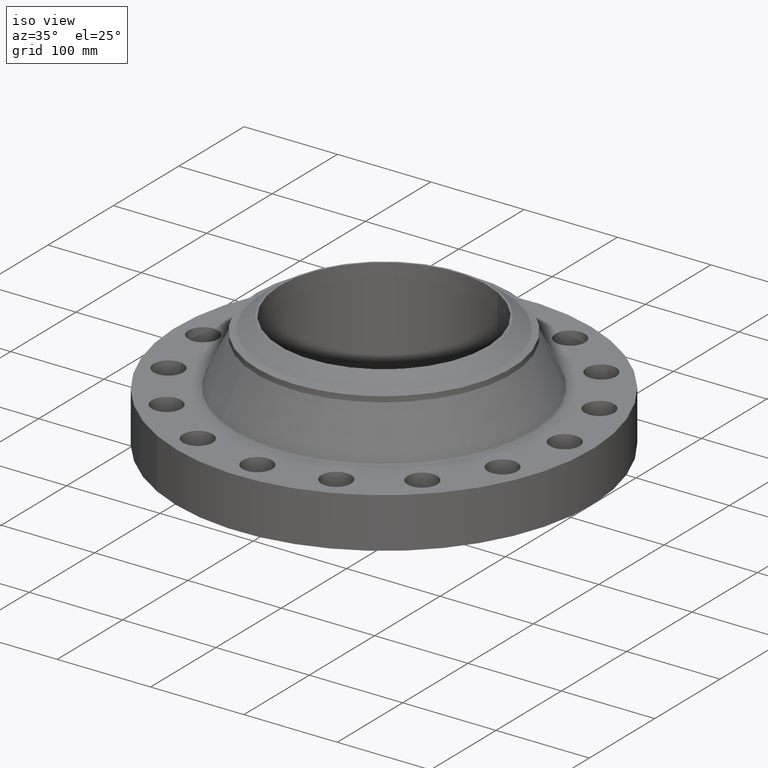
[diagram: clean part render]
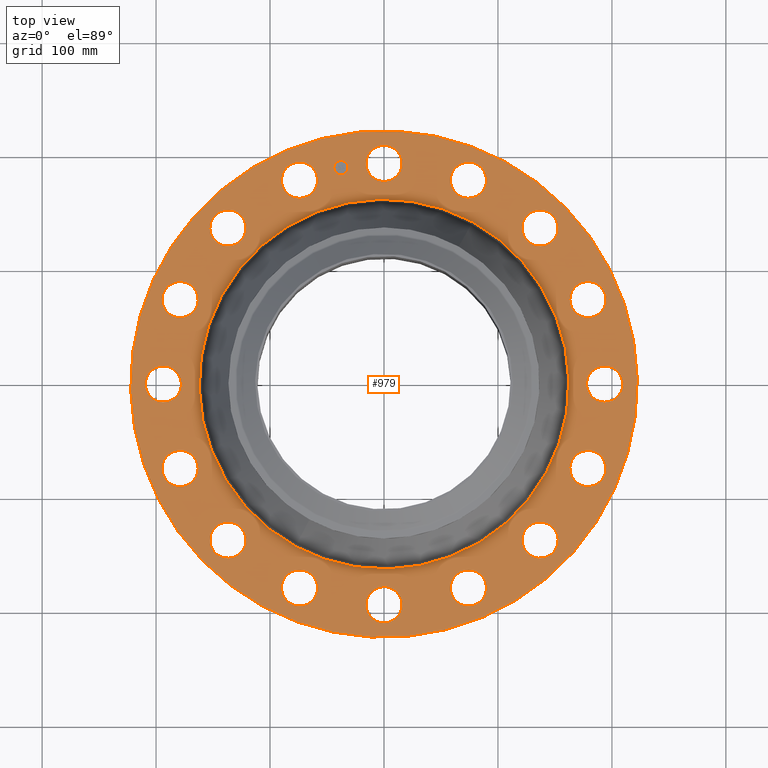
[diagram: tour spotlight — one face highlighted and labeled with its STEP entity id]
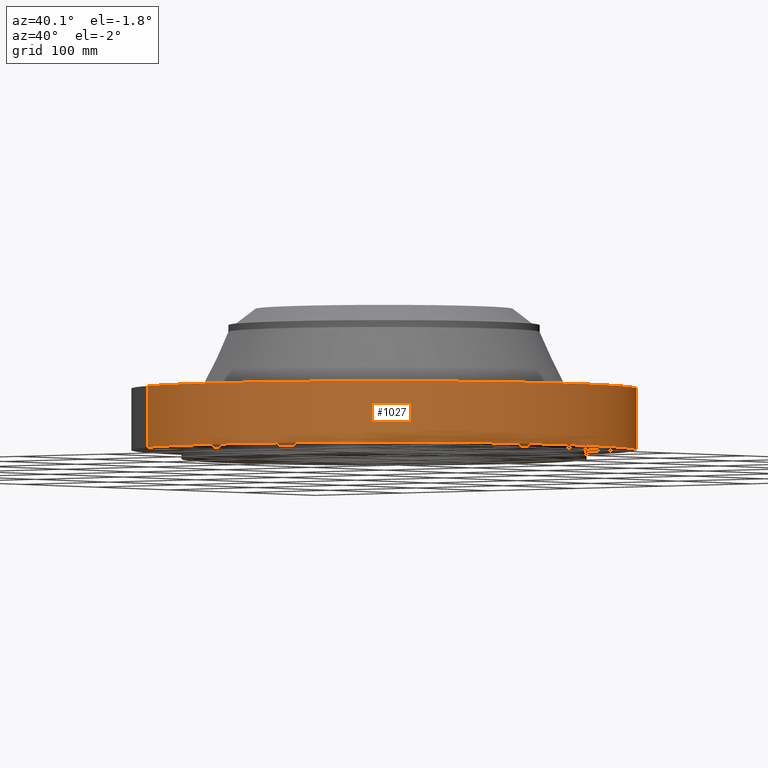
[diagram: tour spotlight — one face highlighted and labeled with its STEP entity id]
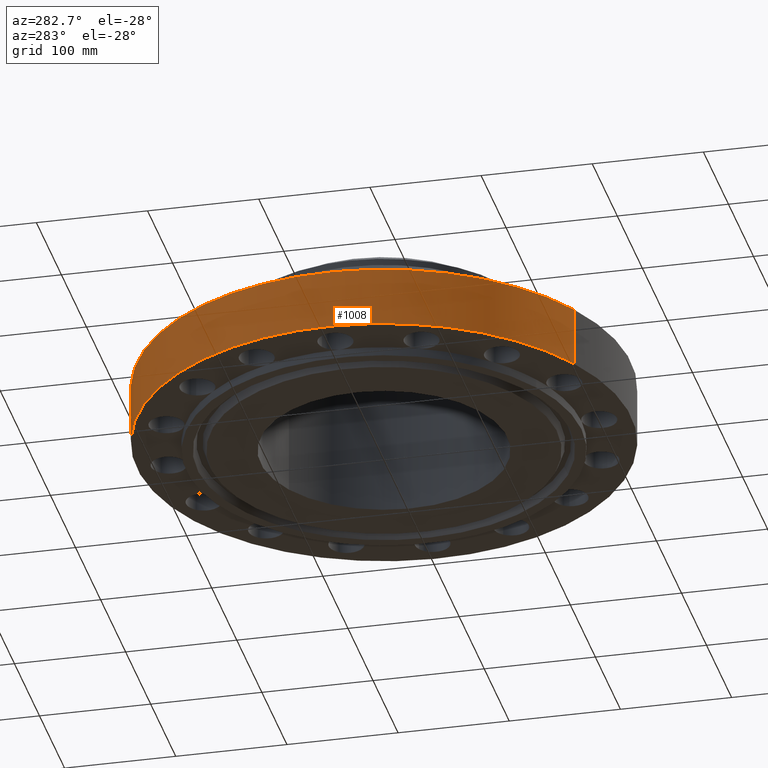
[diagram: tour spotlight — one face highlighted and labeled with its STEP entity id]
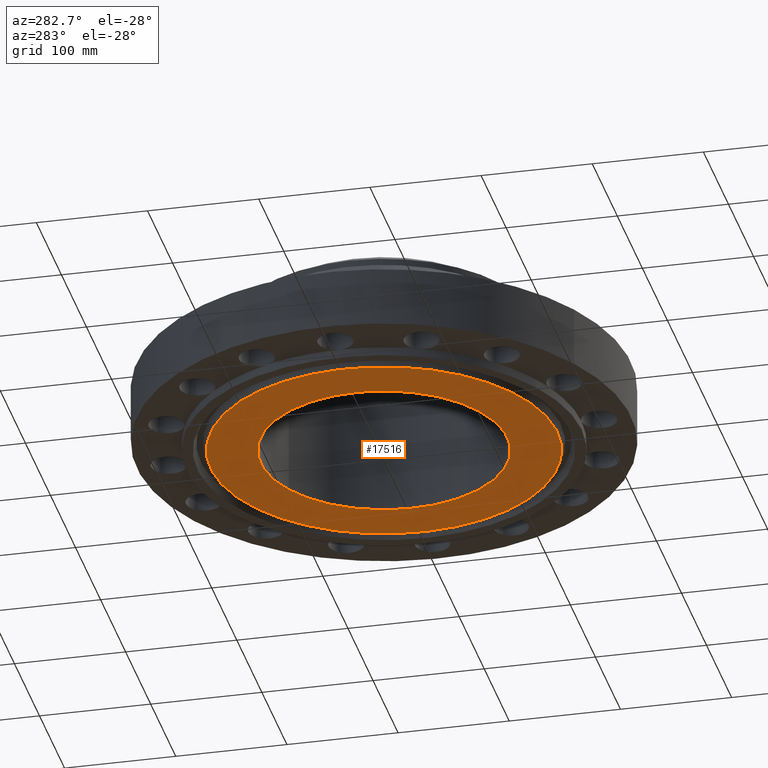
[diagram: tour spotlight — one face highlighted and labeled with its STEP entity id]
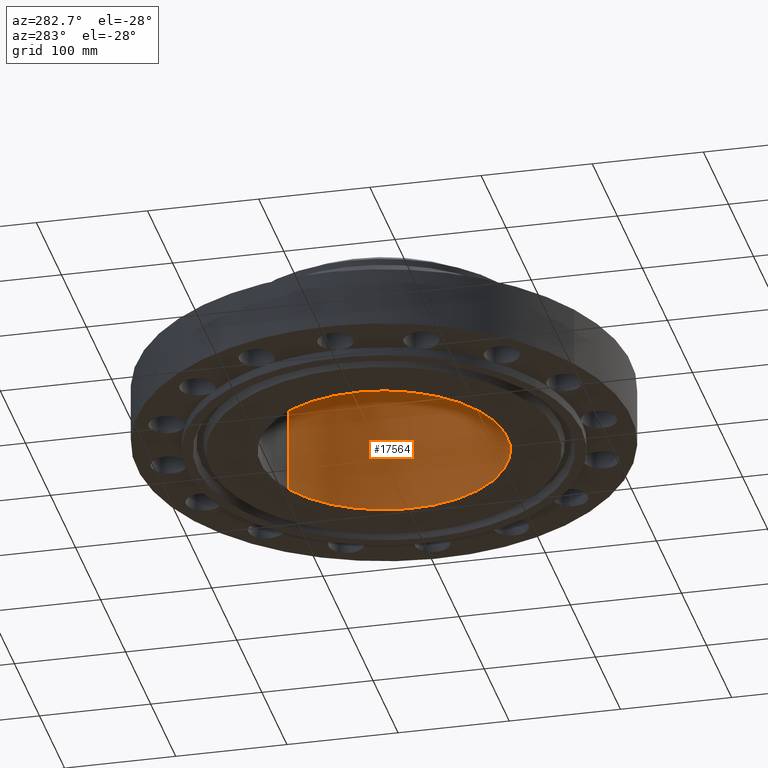
[diagram: tour spotlight — one face highlighted and labeled with its STEP entity id]
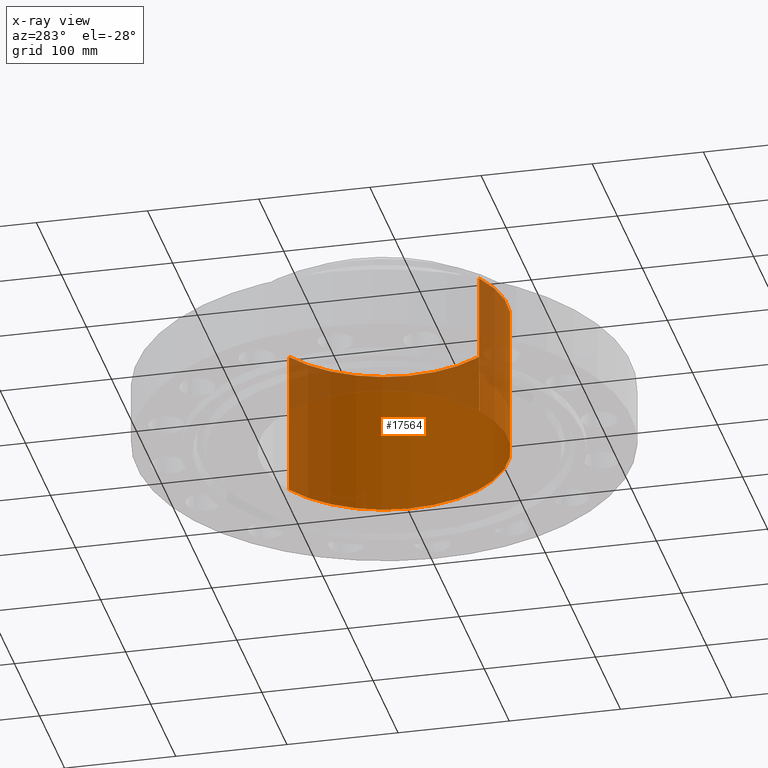
[diagram: x-ray of the same camera — body ghosted, this tour face saturated]
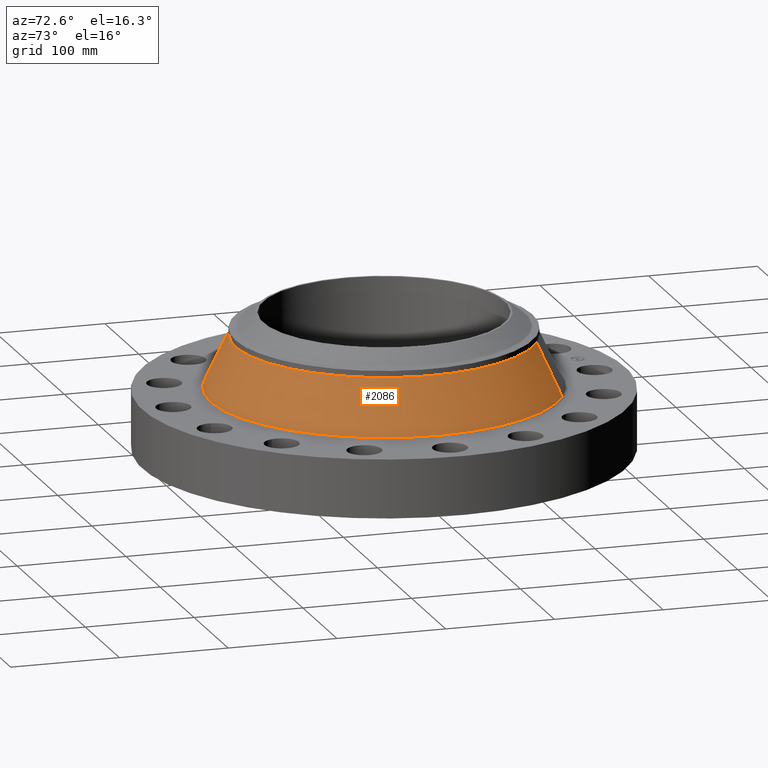
[diagram: tour spotlight — one face highlighted and labeled with its STEP entity id]
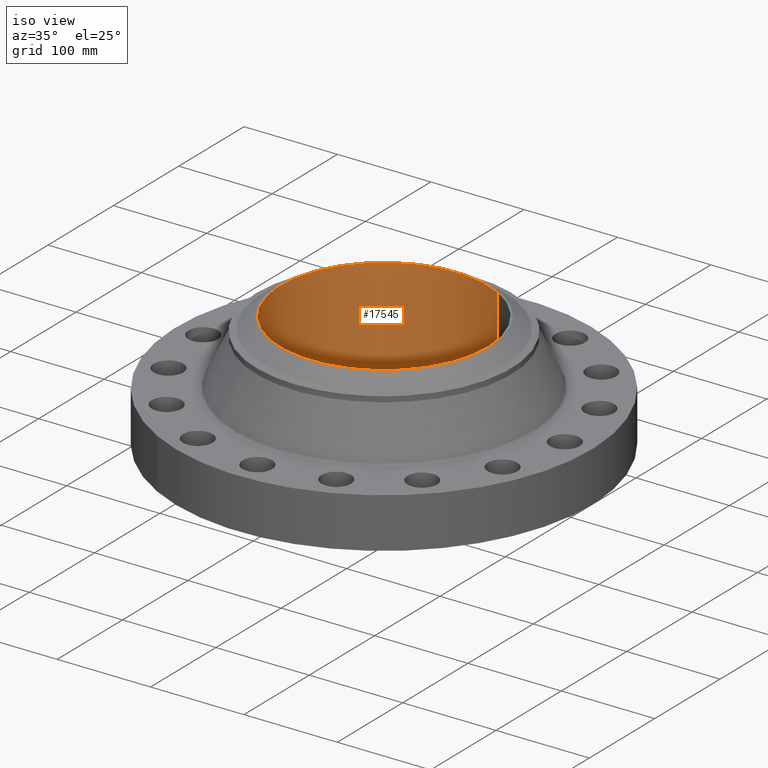
[diagram: tour spotlight — one face highlighted and labeled with its STEP entity id]
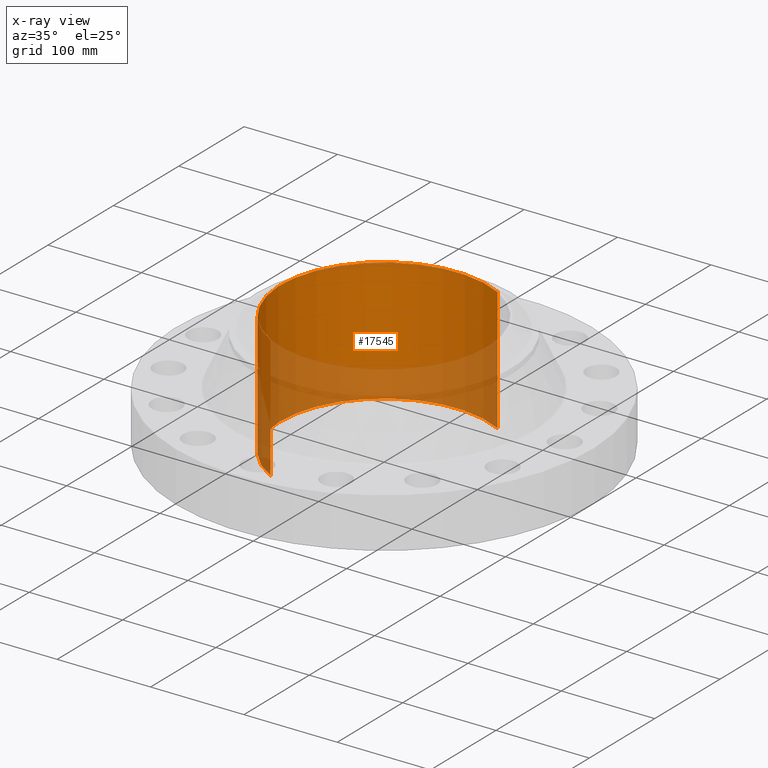
[diagram: x-ray of the same camera — body ghosted, this tour face saturated]
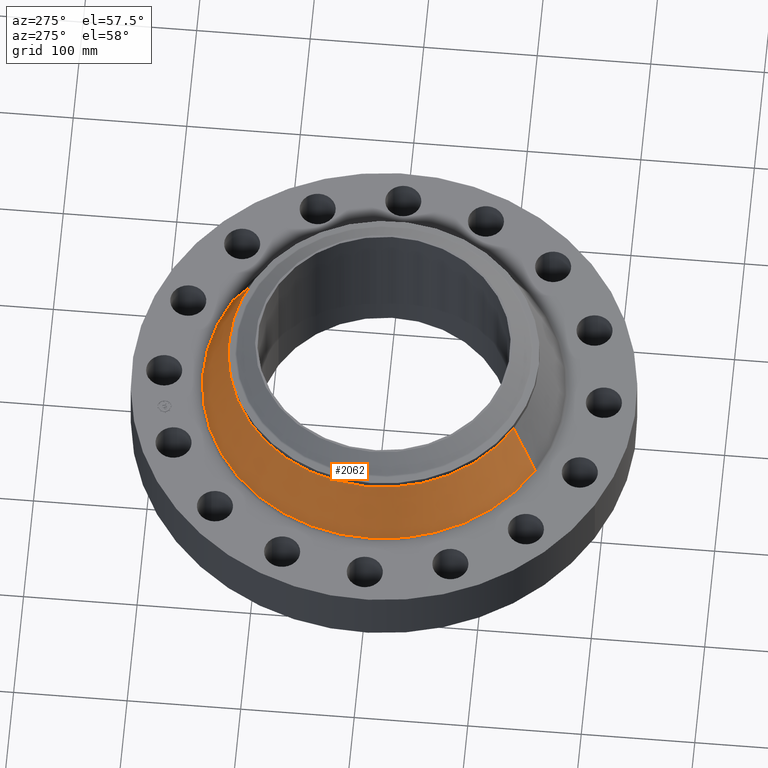
[diagram: tour spotlight — one face highlighted and labeled with its STEP entity id]
A machine part: a face-by-face anatomy tour. The part has 449 B-rep faces; the first image is the clean iso view, then the 8 largest visible faces are spotlighted one at a time (largest first), each with its STEP entity span.

Face 1 — top view, entity #979. In plain terms, the highlighted planar face has unit normal (0, 0, -1).
Definition (entity closure, byte-faithful):
#65=AXIS2_PLACEMENT_3D('Circle Axis2P3D',#63,#64,$) ;
#649=AXIS2_PLACEMENT_3D('Plane Axis2P3D',#646,#647,#648) ;
#653=AXIS2_PLACEMENT_3D('Circle Axis2P3D',#651,#652,$) ;
#662=AXIS2_PLACEMENT_3D('Circle Axis2P3D',#660,#661,$) ;
#675=AXIS2_PLACEMENT_3D('Circle Axis2P3D',#673,#674,$) ;
#684=AXIS2_PLACEMENT_3D('Circle Axis2P3D',#682,#683,$) ;
#693=AXIS2_PLACEMENT_3D('Circle Axis2P3D',#691,#692,$) ;
#702=AXIS2_PLACEMENT_3D('Circle Axis2P3D',#700,#701,$) ;
#711=AXIS2_PLACEMENT_3D('Circle Axis2P3D',#709,#710,$) ;
#720=AXIS2_PLACEMENT_3D('Circle Axis2P3D',#718,#719,$) ;
#729=AXIS2_PLACEMENT_3D('Circle Axis2P3D',#727,#728,$) ;
#738=AXIS2_PLACEMENT_3D('Circle Axis2P3D',#736,#737,$) ;
#747=AXIS2_PLACEMENT_3D('Circle Axis2P3D',#745,#746,$) ;
#756=AXIS2_PLACEMENT_3D('Circle Axis2P3D',#754,#755,$) ;
#765=AXIS2_PLACEMENT_3D('Circle Axis2P3D',#763,#764,$) ;
#774=AXIS2_PLACEMENT_3D('Circle Axis2P3D',#772,#773,$) ;
#783=AXIS2_PLACEMENT_3D('Circle Axis2P3D',#781,#782,$) ;
#792=AXIS2_PLACEMENT_3D('Circle Axis2P3D',#790,#791,$) ;
#801=AXIS2_PLACEMENT_3D('Circle Axis2P3D',#799,#800,$) ;
#810=AXIS2_PLACEMENT_3D('Circle Axis2P3D',#808,#809,$) ;
#819=AXIS2_PLACEMENT_3D('Circle Axis2P3D',#817,#818,$) ;
#828=AXIS2_PLACEMENT_3D('Circle Axis2P3D',#826,#827,$) ;
#837=AXIS2_PLACEMENT_3D('Circle Axis2P3D',#835,#836,$) ;
#846=AXIS2_PLACEMENT_3D('Circle Axis2P3D',#844,#845,$) ;
#855=AXIS2_PLACEMENT_3D('Circle Axis2P3D',#853,#854,$) ;
#864=AXIS2_PLACEMENT_3D('Circle Axis2P3D',#862,#863,$) ;
#873=AXIS2_PLACEMENT_3D('Circle Axis2P3D',#871,#872,$) ;
#882=AXIS2_PLACEMENT_3D('Circle Axis2P3D',#880,#881,$) ;
#891=AXIS2_PLACEMENT_3D('Circle Axis2P3D',#889,#890,$) ;
#900=AXIS2_PLACEMENT_3D('Circle Axis2P3D',#898,#899,$) ;
#909=AXIS2_PLACEMENT_3D('Circle Axis2P3D',#907,#908,$) ;
#918=AXIS2_PLACEMENT_3D('Circle Axis2P3D',#916,#917,$) ;
#927=AXIS2_PLACEMENT_3D('Circle Axis2P3D',#925,#926,$) ;
#936=AXIS2_PLACEMENT_3D('Circle Axis2P3D',#934,#935,$) ;
#945=AXIS2_PLACEMENT_3D('Circle Axis2P3D',#943,#944,$) ;
#954=AXIS2_PLACEMENT_3D('Circle Axis2P3D',#952,#953,$) ;
#963=AXIS2_PLACEMENT_3D('Circle Axis2P3D',#961,#962,$) ;
#972=AXIS2_PLACEMENT_3D('Circle Axis2P3D',#970,#971,$) ;
#46=CARTESIAN_POINT('Vertex',(-0.548489101184,7.92464096166,2.11999999999)) ;
#60=CARTESIAN_POINT('Vertex',(0.548489101184,7.3253590384,2.11999999999)) ;
#63=CARTESIAN_POINT('Axis2P3D Location',(0.,7.62500000003,2.11999999999)) ;
#107=CARTESIAN_POINT('Control Point',(0.548489101184,7.3253590384,2.11999999999)) ;
#108=CARTESIAN_POINT('Control Point',(0.501421608995,7.23920257186,2.11999999999)) ;
#109=CARTESIAN_POINT('Control Point',(0.43743733416,7.1622877858,2.11999999999)) ;
#110=CARTESIAN_POINT('Control Point',(0.358942219447,7.09905846562,2.11999999999)) ;
#111=CARTESIAN_POINT('Control Point',(0.181389323753,7.00678465462,2.11999999999)) ;
#112=CARTESIAN_POINT('Control Point',(-0.0178720390946,6.98849815028,2.12)) ;
#113=CARTESIAN_POINT('Control Point',(-0.118086348064,6.99929269712,2.12)) ;
#114=CARTESIAN_POINT('Control Point',(-0.30888264211,7.0595941162,2.12)) ;
#115=CARTESIAN_POINT('Control Point',(-0.462712214235,7.18756266587,2.12)) ;
#116=CARTESIAN_POINT('Control Point',(-0.52594153441,7.26605778058,2.12)) ;
#117=CARTESIAN_POINT('Control Point',(-0.618215345406,7.44361067628,2.12)) ;
#118=CARTESIAN_POINT('Control Point',(-0.636501849752,7.64287203912,2.12000000001)) ;
#119=CARTESIAN_POINT('Control Point',(-0.625707302914,7.74308634809,2.12000000001)) ;
#120=CARTESIAN_POINT('Control Point',(-0.595556593372,7.83848449512,2.12000000001)) ;
#121=CARTESIAN_POINT('Control Point',(-0.548489101184,7.92464096166,2.12000000001)) ;
#646=CARTESIAN_POINT('Axis2P3D Location',(0.,8.75000000003,2.12000000001)) ;
#651=CARTESIAN_POINT('Axis2P3D Location',(-1.28132675074E-011,3.32332586647E-013,2.12000000001)) ;
#655=CARTESIAN_POINT('Vertex',(4.19497346278,7.67884741658,2.12000000001)) ;
#657=CARTESIAN_POINT('Vertex',(-4.1949734628,-7.67884741657,2.12000000004)) ;
#660=CARTESIAN_POINT('Axis2P3D Location',(1.28132675074E-011,-1.36659187903E-011,2.12000000001)) ;
#673=CARTESIAN_POINT('Axis2P3D Location',(-4.36631308537E-011,1.71884204158E-011,2.12000000001)) ;
#677=CARTESIAN_POINT('Vertex',(-3.06151844407,-5.60407192166,2.12000000001)) ;
#679=CARTESIAN_POINT('Vertex',(3.06151844407,5.60407192166,2.12000000001)) ;
#682=CARTESIAN_POINT('Axis2P3D Location',(1.28121485424E-011,-1.36659187903E-011,2.12000000001)) ;
#691=CARTESIAN_POINT('Axis2P3D Location',(2.91796117178,7.04458143543,2.12000000001)) ;
#695=CARTESIAN_POINT('Vertex',(3.31003139448,6.55785159204,2.12000000001)) ;
#697=CARTESIAN_POINT('Vertex',(2.52589094908,7.53131127884,2.11999999999)) ;
#700=CARTESIAN_POINT('Axis2P3D Location',(2.91796117178,7.04458143543,2.12000000001)) ;
#709=CARTESIAN_POINT('Axis2P3D Location',(5.39168920662,5.39168920658,2.12000000001)) ;
#713=CARTESIAN_POINT('Vertex',(5.56765141354,4.79197068781,2.12000000001)) ;
#715=CARTESIAN_POINT('Vertex',(5.2157269996,5.99140772531,2.11999999999)) ;
#718=CARTESIAN_POINT('Axis2P3D Location',(5.39168920653,5.39168920656,2.12000000001)) ;
#727=CARTESIAN_POINT('Axis2P3D Location',(7.04458143548,2.9179611718,2.12000000001)) ;
#731=CARTESIAN_POINT('Vertex',(6.97764697573,2.29655568572,2.12000000001)) ;
#733=CARTESIAN_POINT('Vertex',(7.11151589513,3.53936665786,2.11999999999)) ;
#736=CARTESIAN_POINT('Axis2P3D Location',(7.0445814354,2.91796117181,2.12000000001)) ;
#745=CARTESIAN_POINT('Axis2P3D Location',(7.62500000003,2.99994499933E-011,2.12000000001)) ;
#749=CARTESIAN_POINT('Vertex',(7.3253590384,-0.548489101184,2.11999999999)) ;
#751=CARTESIAN_POINT('Vertex',(7.92464096166,0.548489101184,2.11999999999)) ;
#754=CARTESIAN_POINT('Axis2P3D Location',(7.62500000006,1.31444811291E-011,2.12000000001)) ;
#763=CARTESIAN_POINT('Axis2P3D Location',(7.04458143543,-2.91796117182,2.12000000001)) ;
#767=CARTESIAN_POINT('Vertex',(6.55785159201,-3.31003139452,2.12000000001)) ;
#769=CARTESIAN_POINT('Vertex',(7.53131127884,-2.52589094908,2.11999999999)) ;
#772=CARTESIAN_POINT('Axis2P3D Location',(7.04458143543,-2.91796117182,2.12000000001)) ;
#781=CARTESIAN_POINT('Axis2P3D Location',(5.39168920658,-5.39168920655,2.12000000001)) ;
#785=CARTESIAN_POINT('Vertex',(4.79197068785,-5.56765141351,2.12000000001)) ;
#787=CARTESIAN_POINT('Vertex',(5.99140772531,-5.2157269996,2.11999999999)) ;
#790=CARTESIAN_POINT('Axis2P3D Location',(5.3916892066,-5.39168920661,2.12000000001)) ;
#799=CARTESIAN_POINT('Axis2P3D Location',(2.91796117181,-7.04458143541,2.12000000001)) ;
#803=CARTESIAN_POINT('Vertex',(2.29655568576,-6.9776469757,2.12000000001)) ;
#805=CARTESIAN_POINT('Vertex',(3.53936665786,-7.11151589513,2.11999999999)) ;
#808=CARTESIAN_POINT('Axis2P3D Location',(2.91796117181,-7.04458143541,2.12000000001)) ;
#817=CARTESIAN_POINT('Axis2P3D Location',(6.99910820464E-012,-7.62500000002,2.12000000001)) ;
#821=CARTESIAN_POINT('Vertex',(-0.548489101184,-7.3253590384,2.11999999999)) ;
#823=CARTESIAN_POINT('Vertex',(0.548489101184,-7.92464096166,2.11999999999)) ;
#826=CARTESIAN_POINT('Axis2P3D Location',(2.3854461713E-011,-7.62499999999,2.12000000001)) ;
#835=CARTESIAN_POINT('Axis2P3D Location',(-2.91796117178,-7.04458143544,2.12000000001)) ;
#839=CARTESIAN_POINT('Vertex',(-3.31003139448,-6.55785159205,2.12000000001)) ;
#841=CARTESIAN_POINT('Vertex',(-2.52589094908,-7.53131127884,2.11999999999)) ;
#844=CARTESIAN_POINT('Axis2P3D Location',(-2.91796117178,-7.04458143544,2.12000000001)) ;
#853=CARTESIAN_POINT('Axis2P3D Location',(-5.3916892066,-5.39168920659,2.12000000001)) ;
#857=CARTESIAN_POINT('Vertex',(-5.56765141354,-4.79197068782,2.12000000001)) ;
#859=CARTESIAN_POINT('Vertex',(-5.2157269996,-5.99140772531,2.11999999999)) ;
#862=CARTESIAN_POINT('Axis2P3D Location',(-5.39168920653,-5.39168920657,2.12000000001)) ;
#871=CARTESIAN_POINT('Axis2P3D Location',(-7.04458143544,-2.91796117178,2.12000000001)) ;
#875=CARTESIAN_POINT('Vertex',(-6.97764697573,-2.29655568573,2.12000000001)) ;
#877=CARTESIAN_POINT('Vertex',(-7.11151589512,-3.53936665786,2.11999999999)) ;
#880=CARTESIAN_POINT('Axis2P3D Location',(-7.04458143544,-2.91796117178,2.12000000001)) ;
#889=CARTESIAN_POINT('Axis2P3D Location',(-7.625,1.31444811291E-011,2.12000000001)) ;
#893=CARTESIAN_POINT('Vertex',(-7.3253590384,0.548489101184,2.11999999999)) ;
#895=CARTESIAN_POINT('Vertex',(-7.92464096166,-0.548489101184,2.11999999999)) ;
#898=CARTESIAN_POINT('Axis2P3D Location',(-7.62500000003,2.99994499933E-011,2.12000000001)) ;
#907=CARTESIAN_POINT('Axis2P3D Location',(-7.0445814354,2.91796117181,2.12000000001)) ;
#911=CARTESIAN_POINT('Vertex',(-6.55785159201,3.31003139451,2.12000000001)) ;
#913=CARTESIAN_POINT('Vertex',(-7.53131127884,2.52589094908,2.11999999999)) ;
#916=CARTESIAN_POINT('Axis2P3D Location',(-7.04458143543,2.91796117184,2.12000000001)) ;
#925=CARTESIAN_POINT('Axis2P3D Location',(-5.39168920658,5.39168920653,2.12000000001)) ;
#929=CARTESIAN_POINT('Vertex',(-4.79197068785,5.5676514135,2.12000000001)) ;
#931=CARTESIAN_POINT('Vertex',(-5.99140772531,5.2157269996,2.11999999999)) ;
#934=CARTESIAN_POINT('Axis2P3D Location',(-5.3916892066,5.3916892066,2.12000000001)) ;
#943=CARTESIAN_POINT('Axis2P3D Location',(-2.91796117182,7.04458143539,2.12000000001)) ;
#947=CARTESIAN_POINT('Vertex',(-2.29655568576,6.97764697576,2.12000000001)) ;
#949=CARTESIAN_POINT('Vertex',(-3.53936665786,7.11151589512,2.11999999999)) ;
#952=CARTESIAN_POINT('Axis2P3D Location',(-2.91796117181,7.04458143547,2.12000000001)) ;
#961=CARTESIAN_POINT('Axis2P3D Location',(-1.48756370538,7.47848776307,2.12000000001)) ;
#965=CARTESIAN_POINT('Vertex',(-1.73030806229,7.43020290842,2.12000000001)) ;
#967=CARTESIAN_POINT('Vertex',(-1.24481934849,7.52677261781,2.12000000001)) ;
#970=CARTESIAN_POINT('Axis2P3D Location',(-1.48756370538,7.47848776307,2.12000000001)) ;
#64=DIRECTION('Axis2P3D Direction',(0.,-0.,-0.0393700787402)) ;
#647=DIRECTION('Axis2P3D Direction',(0.,0.,-0.0393700787402)) ;
#648=DIRECTION('Axis2P3D XDirection',(0.0393700787402,0.,0.)) ;
#652=DIRECTION('Axis2P3D Direction',(0.,0.,-0.0393700787402)) ;
#661=DIRECTION('Axis2P3D Direction',(0.,0.,-0.0393700787402)) ;
#674=DIRECTION('Axis2P3D Direction',(0.,0.,-0.0393700787402)) ;
#683=DIRECTION('Axis2P3D Direction',(0.,0.,-0.0393700787402)) ;
#692=DIRECTION('Axis2P3D Direction',(0.,0.,-0.0393700787402)) ;
#701=DIRECTION('Axis2P3D Direction',(0.,0.,-0.0393700787402)) ;
#710=DIRECTION('Axis2P3D Direction',(0.,0.,-0.0393700787402)) ;
#719=DIRECTION('Axis2P3D Direction',(0.,0.,-0.0393700787402)) ;
#728=DIRECTION('Axis2P3D Direction',(0.,0.,-0.0393700787402)) ;
#737=DIRECTION('Axis2P3D Direction',(0.,0.,-0.0393700787402)) ;
#746=DIRECTION('Axis2P3D Direction',(0.,0.,-0.0393700787402)) ;
#755=DIRECTION('Axis2P3D Direction',(0.,0.,-0.0393700787402)) ;
#764=DIRECTION('Axis2P3D Direction',(0.,0.,-0.0393700787402)) ;
#773=DIRECTION('Axis2P3D Direction',(0.,0.,-0.0393700787402)) ;
#782=DIRECTION('Axis2P3D Direction',(0.,0.,-0.0393700787402)) ;
#791=DIRECTION('Axis2P3D Direction',(0.,0.,-0.0393700787402)) ;
#800=DIRECTION('Axis2P3D Direction',(0.,0.,-0.0393700787402)) ;
#809=DIRECTION('Axis2P3D Direction',(0.,0.,-0.0393700787402)) ;
#818=DIRECTION('Axis2P3D Direction',(0.,0.,-0.0393700787402)) ;
#827=DIRECTION('Axis2P3D Direction',(0.,0.,-0.0393700787402)) ;
#836=DIRECTION('Axis2P3D Direction',(0.,0.,-0.0393700787402)) ;
#845=DIRECTION('Axis2P3D Direction',(0.,0.,-0.0393700787402)) ;
#854=DIRECTION('Axis2P3D Direction',(0.,0.,-0.0393700787402)) ;
#863=DIRECTION('Axis2P3D Direction',(0.,0.,-0.0393700787402)) ;
#872=DIRECTION('Axis2P3D Direction',(0.,0.,-0.0393700787402)) ;
#881=DIRECTION('Axis2P3D Direction',(0.,0.,-0.0393700787402)) ;
#890=DIRECTION('Axis2P3D Direction',(0.,0.,-0.0393700787402)) ;
#899=DIRECTION('Axis2P3D Direction',(0.,0.,-0.0393700787402)) ;
#908=DIRECTION('Axis2P3D Direction',(0.,0.,-0.0393700787402)) ;
#917=DIRECTION('Axis2P3D Direction',(0.,0.,-0.0393700787402)) ;
#926=DIRECTION('Axis2P3D Direction',(0.,0.,-0.0393700787402)) ;
#935=DIRECTION('Axis2P3D Direction',(0.,0.,-0.0393700787402)) ;
#944=DIRECTION('Axis2P3D Direction',(0.,0.,-0.0393700787402)) ;
#953=DIRECTION('Axis2P3D Direction',(0.,0.,-0.0393700787402)) ;
#962=DIRECTION('Axis2P3D Direction',(0.,0.,-0.0393700787402)) ;
#971=DIRECTION('Axis2P3D Direction',(0.,0.,-0.0393700787402)) ;
#666=ORIENTED_EDGE('',*,*,#659,.F.) ;
#667=ORIENTED_EDGE('',*,*,#664,.F.) ;
#670=ORIENTED_EDGE('',*,*,#67,.T.) ;
#671=ORIENTED_EDGE('',*,*,#122,.T.) ;
#688=ORIENTED_EDGE('',*,*,#681,.T.) ;
#689=ORIENTED_EDGE('',*,*,#686,.T.) ;
#706=ORIENTED_EDGE('',*,*,#699,.T.) ;
#707=ORIENTED_EDGE('',*,*,#704,.T.) ;
#724=ORIENTED_EDGE('',*,*,#717,.T.) ;
#725=ORIENTED_EDGE('',*,*,#722,.T.) ;
#742=ORIENTED_EDGE('',*,*,#735,.T.) ;
#743=ORIENTED_EDGE('',*,*,#740,.T.) ;
#760=ORIENTED_EDGE('',*,*,#753,.T.) ;
#761=ORIENTED_EDGE('',*,*,#758,.T.) ;
#778=ORIENTED_EDGE('',*,*,#771,.T.) ;
#779=ORIENTED_EDGE('',*,*,#776,.T.) ;
#796=ORIENTED_EDGE('',*,*,#789,.T.) ;
#797=ORIENTED_EDGE('',*,*,#794,.T.) ;
#814=ORIENTED_EDGE('',*,*,#807,.T.) ;
#815=ORIENTED_EDGE('',*,*,#812,.T.) ;
#832=ORIENTED_EDGE('',*,*,#825,.T.) ;
#833=ORIENTED_EDGE('',*,*,#830,.T.) ;
#850=ORIENTED_EDGE('',*,*,#843,.T.) ;
#851=ORIENTED_EDGE('',*,*,#848,.T.) ;
#868=ORIENTED_EDGE('',*,*,#861,.T.) ;
#869=ORIENTED_EDGE('',*,*,#866,.T.) ;
#886=ORIENTED_EDGE('',*,*,#879,.T.) ;
#887=ORIENTED_EDGE('',*,*,#884,.T.) ;
#904=ORIENTED_EDGE('',*,*,#897,.T.) ;
#905=ORIENTED_EDGE('',*,*,#902,.T.) ;
#922=ORIENTED_EDGE('',*,*,#915,.T.) ;
#923=ORIENTED_EDGE('',*,*,#920,.T.) ;
#940=ORIENTED_EDGE('',*,*,#933,.T.) ;
#941=ORIENTED_EDGE('',*,*,#938,.T.) ;
#958=ORIENTED_EDGE('',*,*,#951,.T.) ;
#959=ORIENTED_EDGE('',*,*,#956,.T.) ;
#976=ORIENTED_EDGE('',*,*,#969,.T.) ;
#977=ORIENTED_EDGE('',*,*,#974,.T.) ;
#672=FACE_BOUND('',#669,.T.) ;
#690=FACE_BOUND('',#687,.T.) ;
#708=FACE_BOUND('',#705,.T.) ;
#726=FACE_BOUND('',#723,.T.) ;
#744=FACE_BOUND('',#741,.T.) ;
#762=FACE_BOUND('',#759,.T.) ;
#780=FACE_BOUND('',#777,.T.) ;
#798=FACE_BOUND('',#795,.T.) ;
#816=FACE_BOUND('',#813,.T.) ;
#834=FACE_BOUND('',#831,.T.) ;
#852=FACE_BOUND('',#849,.T.) ;
#870=FACE_BOUND('',#867,.T.) ;
#888=FACE_BOUND('',#885,.T.) ;
#906=FACE_BOUND('',#903,.T.) ;
#924=FACE_BOUND('',#921,.T.) ;
#942=FACE_BOUND('',#939,.T.) ;
#960=FACE_BOUND('',#957,.T.) ;
#978=FACE_BOUND('',#975,.T.) ;
#979=ADVANCED_FACE('PartBody',(#668,#672,#690,#708,#726,#744,#762,#780,#798,#816,#834,#852,#870,#888,#906,#924,#942,#960,#978),#650,.F.) ;
#106=B_SPLINE_CURVE_WITH_KNOTS('',5,(#107,#108,#109,#110,#111,#112,#113,#114,#115,#116,#117,#118,#119,#120,#121),.UNSPECIFIED.,.F.,.U.,(6,3,3,3,6),(-24.936391688,-12.468195844,0.,12.468195844,24.936391688),.UNSPECIFIED.) ;
#66=CIRCLE('generated circle',#65,0.625000000003) ;
#654=CIRCLE('generated circle',#653,8.75000000003) ;
#663=CIRCLE('generated circle',#662,8.75000000003) ;
#676=CIRCLE('generated circle',#675,6.38580592301) ;
#685=CIRCLE('generated circle',#684,6.38580592301) ;
#694=CIRCLE('generated circle',#693,0.624999999987) ;
#703=CIRCLE('generated circle',#702,0.624999999987) ;
#712=CIRCLE('generated circle',#711,0.62500000002) ;
#721=CIRCLE('generated circle',#720,0.62500000002) ;
#730=CIRCLE('generated circle',#729,0.625000000032) ;
#739=CIRCLE('generated circle',#738,0.625000000032) ;
#748=CIRCLE('generated circle',#747,0.625000000002) ;
#757=CIRCLE('generated circle',#756,0.625000000002) ;
#766=CIRCLE('generated circle',#765,0.62500000001) ;
#775=CIRCLE('generated circle',#774,0.62500000001) ;
#784=CIRCLE('generated circle',#783,0.624999999985) ;
#793=CIRCLE('generated circle',#792,0.624999999985) ;
#802=CIRCLE('generated circle',#801,0.624999999996) ;
#811=CIRCLE('generated circle',#810,0.624999999996) ;
#820=CIRCLE('generated circle',#819,0.62500000002) ;
#829=CIRCLE('generated circle',#828,0.62500000002) ;
#838=CIRCLE('generated circle',#837,0.624999999987) ;
#847=CIRCLE('generated circle',#846,0.624999999987) ;
#856=CIRCLE('generated circle',#855,0.62500000002) ;
#865=CIRCLE('generated circle',#864,0.62500000002) ;
#874=CIRCLE('generated circle',#873,0.624999999996) ;
#883=CIRCLE('generated circle',#882,0.624999999996) ;
#892=CIRCLE('generated circle',#891,0.625000000002) ;
#901=CIRCLE('generated circle',#900,0.625000000002) ;
#910=CIRCLE('generated circle',#909,0.624999999987) ;
#919=CIRCLE('generated circle',#918,0.624999999987) ;
#928=CIRCLE('generated circle',#927,0.624999999985) ;
#937=CIRCLE('generated circle',#936,0.624999999985) ;
#946=CIRCLE('generated circle',#945,0.624999999992) ;
#955=CIRCLE('generated circle',#954,0.624999999992) ;
#964=CIRCLE('generated circle',#963,0.247499999999) ;
#973=CIRCLE('generated circle',#972,0.247499999999) ;
#67=EDGE_CURVE('',#47,#61,#66,.T.) ;
#122=EDGE_CURVE('',#61,#47,#106,.T.) ;
#659=EDGE_CURVE('',#656,#658,#654,.T.) ;
#664=EDGE_CURVE('',#658,#656,#663,.T.) ;
#681=EDGE_CURVE('',#678,#680,#676,.T.) ;
#686=EDGE_CURVE('',#680,#678,#685,.T.) ;
#699=EDGE_CURVE('',#696,#698,#694,.T.) ;
#704=EDGE_CURVE('',#698,#696,#703,.T.) ;
#717=EDGE_CURVE('',#714,#716,#712,.T.) ;
#722=EDGE_CURVE('',#716,#714,#721,.T.) ;
#735=EDGE_CURVE('',#732,#734,#730,.T.) ;
#740=EDGE_CURVE('',#734,#732,#739,.T.) ;
#753=EDGE_CURVE('',#750,#752,#748,.T.) ;
#758=EDGE_CURVE('',#752,#750,#757,.T.) ;
#771=EDGE_CURVE('',#768,#770,#766,.T.) ;
#776=EDGE_CURVE('',#770,#768,#775,.T.) ;
#789=EDGE_CURVE('',#786,#788,#784,.T.) ;
#794=EDGE_CURVE('',#788,#786,#793,.T.) ;
#807=EDGE_CURVE('',#804,#806,#802,.T.) ;
#812=EDGE_CURVE('',#806,#804,#811,.T.) ;
#825=EDGE_CURVE('',#822,#824,#820,.T.) ;
#830=EDGE_CURVE('',#824,#822,#829,.T.) ;
#843=EDGE_CURVE('',#840,#842,#838,.T.) ;
#848=EDGE_CURVE('',#842,#840,#847,.T.) ;
#861=EDGE_CURVE('',#858,#860,#856,.T.) ;
#866=EDGE_CURVE('',#860,#858,#865,.T.) ;
#879=EDGE_CURVE('',#876,#878,#874,.T.) ;
#884=EDGE_CURVE('',#878,#876,#883,.T.) ;
#897=EDGE_CURVE('',#894,#896,#892,.T.) ;
#902=EDGE_CURVE('',#896,#894,#901,.T.) ;
#915=EDGE_CURVE('',#912,#914,#910,.T.) ;
#920=EDGE_CURVE('',#914,#912,#919,.T.) ;
#933=EDGE_CURVE('',#930,#932,#928,.T.) ;
#938=EDGE_CURVE('',#932,#930,#937,.T.) ;
#951=EDGE_CURVE('',#948,#950,#946,.T.) ;
#956=EDGE_CURVE('',#950,#948,#955,.T.) ;
#969=EDGE_CURVE('',#966,#968,#964,.T.) ;
#974=EDGE_CURVE('',#968,#966,#973,.T.) ;
#665=EDGE_LOOP('',(#666,#667)) ;
#669=EDGE_LOOP('',(#670,#671)) ;
#687=EDGE_LOOP('',(#688,#689)) ;
#705=EDGE_LOOP('',(#706,#707)) ;
#723=EDGE_LOOP('',(#724,#725)) ;
#741=EDGE_LOOP('',(#742,#743)) ;
#759=EDGE_LOOP('',(#760,#761)) ;
#777=EDGE_LOOP('',(#778,#779)) ;
#795=EDGE_LOOP('',(#796,#797)) ;
#813=EDGE_LOOP('',(#814,#815)) ;
#831=EDGE_LOOP('',(#832,#833)) ;
#849=EDGE_LOOP('',(#850,#851)) ;
#867=EDGE_LOOP('',(#868,#869)) ;
#885=EDGE_LOOP('',(#886,#887)) ;
#903=EDGE_LOOP('',(#904,#905)) ;
#921=EDGE_LOOP('',(#922,#923)) ;
#939=EDGE_LOOP('',(#940,#941)) ;
#957=EDGE_LOOP('',(#958,#959)) ;
#975=EDGE_LOOP('',(#976,#977)) ;
#668=FACE_OUTER_BOUND('',#665,.T.) ;
#650=PLANE('',#649) ;
#47=VERTEX_POINT('',#46) ;
#61=VERTEX_POINT('',#60) ;
#656=VERTEX_POINT('',#655) ;
#658=VERTEX_POINT('',#657) ;
#678=VERTEX_POINT('',#677) ;
#680=VERTEX_POINT('',#679) ;
#696=VERTEX_POINT('',#695) ;
#698=VERTEX_POINT('',#697) ;
#714=VERTEX_POINT('',#713) ;
#716=VERTEX_POINT('',#715) ;
#732=VERTEX_POINT('',#731) ;
#734=VERTEX_POINT('',#733) ;
#750=VERTEX_POINT('',#749) ;
#752=VERTEX_POINT('',#751) ;
#768=VERTEX_POINT('',#767) ;
#770=VERTEX_POINT('',#769) ;
#786=VERTEX_POINT('',#785) ;
#788=VERTEX_POINT('',#787) ;
#804=VERTEX_POINT('',#803) ;
#806=VERTEX_POINT('',#805) ;
#822=VERTEX_POINT('',#821) ;
#824=VERTEX_POINT('',#823) ;
#840=VERTEX_POINT('',#839) ;
#842=VERTEX_POINT('',#841) ;
#858=VERTEX_POINT('',#857) ;
#860=VERTEX_POINT('',#859) ;
#876=VERTEX_POINT('',#875) ;
#878=VERTEX_POINT('',#877) ;
#894=VERTEX_POINT('',#893) ;
#896=VERTEX_POINT('',#895) ;
#912=VERTEX_POINT('',#911) ;
#914=VERTEX_POINT('',#913) ;
#930=VERTEX_POINT('',#929) ;
#932=VERTEX_POINT('',#931) ;
#948=VERTEX_POINT('',#947) ;
#950=VERTEX_POINT('',#949) ;
#966=VERTEX_POINT('',#965) ;
#968=VERTEX_POINT('',#967) ;

Face 2 — auxiliary view, entity #1027. In plain terms, the highlighted cylindrical surface (partial cylindrical patch) has radius 222.25 mm, axis along (0, 0, -1).
Definition (entity closure, byte-faithful):
#154=AXIS2_PLACEMENT_3D('Circle Axis2P3D',#152,#153,$) ;
#653=AXIS2_PLACEMENT_3D('Circle Axis2P3D',#651,#652,$) ;
#1019=AXIS2_PLACEMENT_3D('Cylinder Axis2P3D',#1016,#1017,#1018) ;
#147=CARTESIAN_POINT('Vertex',(-4.1949734628,-7.67884741657,8.39223703654E-016)) ;
#149=CARTESIAN_POINT('Vertex',(4.1949734628,7.67884741657,-3.14177380524E-012)) ;
#152=CARTESIAN_POINT('Axis2P3D Location',(1.1189649382E-015,6.68022068108E-013,0.)) ;
#651=CARTESIAN_POINT('Axis2P3D Location',(-1.28132675074E-011,3.32332586647E-013,2.12000000001)) ;
#655=CARTESIAN_POINT('Vertex',(4.19497346278,7.67884741658,2.12000000001)) ;
#657=CARTESIAN_POINT('Vertex',(-4.1949734628,-7.67884741657,2.12000000004)) ;
#992=CARTESIAN_POINT('Line Origine',(-4.1949734628,-7.67884741657,1.06000000002)) ;
#997=CARTESIAN_POINT('Line Origine',(4.1949734628,7.67884741657,1.06000000002)) ;
#1016=CARTESIAN_POINT('Axis2P3D Location',(0.,0.,2.28350000001)) ;
#153=DIRECTION('Axis2P3D Direction',(0.,0.,-0.0393700787402)) ;
#652=DIRECTION('Axis2P3D Direction',(0.,0.,-0.0393700787402)) ;
#993=DIRECTION('Vector Direction',(0.,0.,-0.0393700787402)) ;
#998=DIRECTION('Vector Direction',(0.,0.,-0.0393700787402)) ;
#1017=DIRECTION('Axis2P3D Direction',(0.,0.,-0.0393700787402)) ;
#1018=DIRECTION('Axis2P3D XDirection',(0.0188750212049,0.0345504945626,0.)) ;
#994=VECTOR('Line Direction',#993,0.0393700787402) ;
#999=VECTOR('Line Direction',#998,0.0393700787402) ;
#1022=ORIENTED_EDGE('',*,*,#156,.F.) ;
#1023=ORIENTED_EDGE('',*,*,#1001,.T.) ;
#1024=ORIENTED_EDGE('',*,*,#659,.T.) ;
#1025=ORIENTED_EDGE('',*,*,#996,.F.) ;
#1027=ADVANCED_FACE('PartBody',(#1026),#1020,.T.) ;
#155=CIRCLE('generated circle',#154,8.75) ;
#654=CIRCLE('generated circle',#653,8.75000000003) ;
#1020=CYLINDRICAL_SURFACE('generated cylinder',#1019,8.75000000003) ;
#156=EDGE_CURVE('',#150,#148,#155,.T.) ;
#659=EDGE_CURVE('',#656,#658,#654,.T.) ;
#996=EDGE_CURVE('',#148,#658,#995,.F.) ;
#1001=EDGE_CURVE('',#150,#656,#1000,.F.) ;
#1021=EDGE_LOOP('',(#1022,#1023,#1024,#1025)) ;
#1026=FACE_OUTER_BOUND('',#1021,.T.) ;
#995=LINE('Line',#992,#994) ;
#1000=LINE('Line',#997,#999) ;
#148=VERTEX_POINT('',#147) ;
#150=VERTEX_POINT('',#149) ;
#656=VERTEX_POINT('',#655) ;
#658=VERTEX_POINT('',#657) ;

Face 3 — auxiliary view, entity #1008. In plain terms, the highlighted cylindrical surface (partial cylindrical patch) has radius 222.25 mm, axis along (0, 0, -1).
Definition (entity closure, byte-faithful):
#145=AXIS2_PLACEMENT_3D('Circle Axis2P3D',#143,#144,$) ;
#662=AXIS2_PLACEMENT_3D('Circle Axis2P3D',#660,#661,$) ;
#990=AXIS2_PLACEMENT_3D('Cylinder Axis2P3D',#987,#988,#989) ;
#143=CARTESIAN_POINT('Axis2P3D Location',(-1.1189649382E-015,6.68022068108E-013,0.)) ;
#147=CARTESIAN_POINT('Vertex',(-4.1949734628,-7.67884741657,8.39223703654E-016)) ;
#149=CARTESIAN_POINT('Vertex',(4.1949734628,7.67884741657,-3.14177380524E-012)) ;
#655=CARTESIAN_POINT('Vertex',(4.19497346278,7.67884741658,2.12000000001)) ;
#657=CARTESIAN_POINT('Vertex',(-4.1949734628,-7.67884741657,2.12000000004)) ;
#660=CARTESIAN_POINT('Axis2P3D Location',(1.28132675074E-011,-1.36659187903E-011,2.12000000001)) ;
#987=CARTESIAN_POINT('Axis2P3D Location',(0.,0.,2.28350000001)) ;
#992=CARTESIAN_POINT('Line Origine',(-4.1949734628,-7.67884741657,1.06000000002)) ;
#997=CARTESIAN_POINT('Line Origine',(4.1949734628,7.67884741657,1.06000000002)) ;
#144=DIRECTION('Axis2P3D Direction',(0.,0.,-0.0393700787402)) ;
#661=DIRECTION('Axis2P3D Direction',(0.,0.,-0.0393700787402)) ;
#988=DIRECTION('Axis2P3D Direction',(0.,0.,-0.0393700787402)) ;
#989=DIRECTION('Axis2P3D XDirection',(-0.0188750212049,-0.0345504945626,0.)) ;
#993=DIRECTION('Vector Direction',(0.,0.,-0.0393700787402)) ;
#998=DIRECTION('Vector Direction',(0.,0.,-0.0393700787402)) ;
#994=VECTOR('Line Direction',#993,0.0393700787402) ;
#999=VECTOR('Line Direction',#998,0.0393700787402) ;
#1003=ORIENTED_EDGE('',*,*,#151,.F.) ;
#1004=ORIENTED_EDGE('',*,*,#996,.T.) ;
#1005=ORIENTED_EDGE('',*,*,#664,.T.) ;
#1006=ORIENTED_EDGE('',*,*,#1001,.F.) ;
#1008=ADVANCED_FACE('PartBody',(#1007),#991,.T.) ;
#146=CIRCLE('generated circle',#145,8.75) ;
#663=CIRCLE('generated circle',#662,8.75000000003) ;
#991=CYLINDRICAL_SURFACE('generated cylinder',#990,8.75000000003) ;
#151=EDGE_CURVE('',#148,#150,#146,.T.) ;
#664=EDGE_CURVE('',#658,#656,#663,.T.) ;
#996=EDGE_CURVE('',#148,#658,#995,.F.) ;
#1001=EDGE_CURVE('',#150,#656,#1000,.F.) ;
#1002=EDGE_LOOP('',(#1003,#1004,#1005,#1006)) ;
#1007=FACE_OUTER_BOUND('',#1002,.T.) ;
#995=LINE('Line',#992,#994) ;
#1000=LINE('Line',#997,#999) ;
#148=VERTEX_POINT('',#147) ;
#150=VERTEX_POINT('',#149) ;
#656=VERTEX_POINT('',#655) ;
#658=VERTEX_POINT('',#657) ;

Face 4 — auxiliary view, entity #17516. In plain terms, the highlighted planar face has unit normal (0, 0, -1).
Definition (entity closure, byte-faithful):
#2000=AXIS2_PLACEMENT_3D('Plane Axis2P3D',#1997,#1998,#1999) ;
#17418=AXIS2_PLACEMENT_3D('Circle Axis2P3D',#17416,#17417,$) ;
#17442=AXIS2_PLACEMENT_3D('Circle Axis2P3D',#17440,#17441,$) ;
#17500=AXIS2_PLACEMENT_3D('Circle Axis2P3D',#17498,#17499,$) ;
#17509=AXIS2_PLACEMENT_3D('Circle Axis2P3D',#17507,#17508,$) ;
#1997=CARTESIAN_POINT('Axis2P3D Location',(0.,4.37500000002,-0.313000000001)) ;
#17406=CARTESIAN_POINT('Vertex',(-2.94391251983,5.3887957213,-0.313000000001)) ;
#17413=CARTESIAN_POINT('Vertex',(2.94391251983,-5.38879572133,-0.313000000001)) ;
#17416=CARTESIAN_POINT('Axis2P3D Location',(0.,0.,-0.313000000002)) ;
#17440=CARTESIAN_POINT('Axis2P3D Location',(0.,0.,-0.313000000002)) ;
#17498=CARTESIAN_POINT('Axis2P3D Location',(1.28121485424E-011,-2.36649894781E-011,-0.313000000001)) ;
#17502=CARTESIAN_POINT('Vertex',(2.0974867314,3.83942370829,-0.313000000034)) ;
#17504=CARTESIAN_POINT('Vertex',(-2.09748673143,-3.83942370829,-0.313000000001)) ;
#17507=CARTESIAN_POINT('Axis2P3D Location',(-1.28121485424E-011,-9.66673810115E-012,-0.313000000001)) ;
#1998=DIRECTION('Axis2P3D Direction',(0.,0.,-0.0393700787402)) ;
#1999=DIRECTION('Axis2P3D XDirection',(0.0393700787402,0.,0.)) ;
#17417=DIRECTION('Axis2P3D Direction',(0.,0.,0.0393700787402)) ;
#17441=DIRECTION('Axis2P3D Direction',(0.,0.,0.0393700787402)) ;
#17499=DIRECTION('Axis2P3D Direction',(0.,0.,-0.0393700787402)) ;
#17508=DIRECTION('Axis2P3D Direction',(0.,0.,-0.0393700787402)) ;
#17495=ORIENTED_EDGE('',*,*,#17420,.T.) ;
#17496=ORIENTED_EDGE('',*,*,#17444,.T.) ;
#17513=ORIENTED_EDGE('',*,*,#17506,.F.) ;
#17514=ORIENTED_EDGE('',*,*,#17511,.F.) ;
#17515=FACE_BOUND('',#17512,.T.) ;
#17516=ADVANCED_FACE('PartBody',(#17497,#17515),#2001,.T.) ;
#17419=CIRCLE('generated circle',#17418,6.14050000002) ;
#17443=CIRCLE('generated circle',#17442,6.14050000002) ;
#17501=CIRCLE('generated circle',#17500,4.37500000002) ;
#17510=CIRCLE('generated circle',#17509,4.37500000002) ;
#17420=EDGE_CURVE('',#17407,#17414,#17419,.F.) ;
#17444=EDGE_CURVE('',#17414,#17407,#17443,.F.) ;
#17506=EDGE_CURVE('',#17503,#17505,#17501,.T.) ;
#17511=EDGE_CURVE('',#17505,#17503,#17510,.T.) ;
#17494=EDGE_LOOP('',(#17495,#17496)) ;
#17512=EDGE_LOOP('',(#17513,#17514)) ;
#17497=FACE_OUTER_BOUND('',#17494,.T.) ;
#2001=PLANE('',#2000) ;
#17407=VERTEX_POINT('',#17406) ;
#17414=VERTEX_POINT('',#17413) ;
#17503=VERTEX_POINT('',#17502) ;
#17505=VERTEX_POINT('',#17504) ;

Face 5 — auxiliary view, entity #17564. An x-ray twin of the same camera follows (body ghosted, this face saturated) — the face is partly hidden behind the body. In plain terms, the highlighted cylindrical surface (partial cylindrical patch) has radius 111.125 mm, axis along (0, 0, -1).
Definition (entity closure, byte-faithful):
#17479=AXIS2_PLACEMENT_3D('Circle Axis2P3D',#17477,#17478,$) ;
#17500=AXIS2_PLACEMENT_3D('Circle Axis2P3D',#17498,#17499,$) ;
#17556=AXIS2_PLACEMENT_3D('Cylinder Axis2P3D',#17553,#17554,#17555) ;
#17472=CARTESIAN_POINT('Vertex',(-2.09748673143,-3.8394237083,4.88000000002)) ;
#17474=CARTESIAN_POINT('Vertex',(2.09748673143,3.83942370832,4.88000000002)) ;
#17477=CARTESIAN_POINT('Axis2P3D Location',(-1.67844740731E-015,5.33410586042E-012,4.88000000002)) ;
#17498=CARTESIAN_POINT('Axis2P3D Location',(1.28121485424E-011,-2.36649894781E-011,-0.313000000001)) ;
#17502=CARTESIAN_POINT('Vertex',(2.0974867314,3.83942370829,-0.313000000034)) ;
#17504=CARTESIAN_POINT('Vertex',(-2.09748673143,-3.83942370829,-0.313000000001)) ;
#17529=CARTESIAN_POINT('Line Origine',(-2.0974867314,-3.83942370829,2.28350000001)) ;
#17534=CARTESIAN_POINT('Line Origine',(2.0974867314,3.83942370829,2.28350000001)) ;
#17553=CARTESIAN_POINT('Axis2P3D Location',(0.,0.,2.28350000001)) ;
#17478=DIRECTION('Axis2P3D Direction',(0.,0.,-0.0393700787402)) ;
#17499=DIRECTION('Axis2P3D Direction',(0.,0.,-0.0393700787402)) ;
#17530=DIRECTION('Vector Direction',(0.,0.,-0.0393700787402)) ;
#17535=DIRECTION('Vector Direction',(0.,0.,-0.0393700787402)) ;
#17554=DIRECTION('Axis2P3D Direction',(0.,0.,-0.0393700787402)) ;
#17555=DIRECTION('Axis2P3D XDirection',(0.0188750212049,0.0345504945626,0.)) ;
#17531=VECTOR('Line Direction',#17530,0.0393700787402) ;
#17536=VECTOR('Line Direction',#17535,0.0393700787402) ;
#17559=ORIENTED_EDGE('',*,*,#17481,.F.) ;
#17560=ORIENTED_EDGE('',*,*,#17538,.T.) ;
#17561=ORIENTED_EDGE('',*,*,#17506,.T.) ;
#17562=ORIENTED_EDGE('',*,*,#17533,.F.) ;
#17564=ADVANCED_FACE('PartBody',(#17563),#17557,.F.) ;
#17480=CIRCLE('generated circle',#17479,4.37500000005) ;
#17501=CIRCLE('generated circle',#17500,4.37500000002) ;
#17557=CYLINDRICAL_SURFACE('generated cylinder',#17556,4.37500000002) ;
#17481=EDGE_CURVE('',#17475,#17473,#17480,.T.) ;
#17506=EDGE_CURVE('',#17503,#17505,#17501,.T.) ;
#17533=EDGE_CURVE('',#17473,#17505,#17532,.T.) ;
#17538=EDGE_CURVE('',#17475,#17503,#17537,.T.) ;
#17558=EDGE_LOOP('',(#17559,#17560,#17561,#17562)) ;
#17563=FACE_OUTER_BOUND('',#17558,.T.) ;
#17532=LINE('Line',#17529,#17531) ;
#17537=LINE('Line',#17534,#17536) ;
#17473=VERTEX_POINT('',#17472) ;
#17475=VERTEX_POINT('',#17474) ;
#17503=VERTEX_POINT('',#17502) ;
#17505=VERTEX_POINT('',#17504) ;

Face 6 — auxiliary view, entity #2086. In plain terms, the highlighted conical surface has half-angle 25.437 deg.
Definition (entity closure, byte-faithful):
#1905=AXIS2_PLACEMENT_3D('Circle Axis2P3D',#1903,#1904,$) ;
#2073=AXIS2_PLACEMENT_3D('Cone Axis2P3D',#2070,#2071,#2072) ;
#2077=AXIS2_PLACEMENT_3D('Circle Axis2P3D',#2075,#2076,$) ;
#1869=CARTESIAN_POINT('Vertex',(-3.00956475797,-5.50897133715,2.18845687897)) ;
#1876=CARTESIAN_POINT('Vertex',(3.00956475797,5.50897133715,2.18845687897)) ;
#1903=CARTESIAN_POINT('Axis2P3D Location',(0.,0.,2.18845687897)) ;
#2037=CARTESIAN_POINT('Line Origine',(-2.79323851399,-5.11298880366,3.13712112705)) ;
#2041=CARTESIAN_POINT('Vertex',(-2.57691227001,-4.71700627018,4.08578537513)) ;
#2048=CARTESIAN_POINT('Vertex',(2.57691227001,4.71700627018,4.08578537513)) ;
#2051=CARTESIAN_POINT('Line Origine',(2.79323851399,5.11298880366,3.13712112705)) ;
#2070=CARTESIAN_POINT('Axis2P3D Location',(0.,0.,4.08578537513)) ;
#2075=CARTESIAN_POINT('Axis2P3D Location',(0.,0.,4.08578537513)) ;
#1904=DIRECTION('Axis2P3D Direction',(-0.,0.,-0.0393700787402)) ;
#2038=DIRECTION('Vector Direction',(-0.0081073125216,-0.0148403360269,-0.0355533262901)) ;
#2052=DIRECTION('Vector Direction',(0.0081073125216,0.0148403360269,-0.0355533262901)) ;
#2071=DIRECTION('Axis2P3D Direction',(0.,0.,-0.0393700787402)) ;
#2072=DIRECTION('Axis2P3D XDirection',(0.0188750212049,0.0345504945626,0.)) ;
#2076=DIRECTION('Axis2P3D Direction',(-0.,0.,-0.0393700787402)) ;
#2039=VECTOR('Line Direction',#2038,0.0393700787402) ;
#2053=VECTOR('Line Direction',#2052,0.0393700787402) ;
#2081=ORIENTED_EDGE('',*,*,#1907,.F.) ;
#2082=ORIENTED_EDGE('',*,*,#2055,.T.) ;
#2083=ORIENTED_EDGE('',*,*,#2079,.T.) ;
#2084=ORIENTED_EDGE('',*,*,#2043,.F.) ;
#2086=ADVANCED_FACE('PartBody',(#2085),#2074,.T.) ;
#1906=CIRCLE('generated circle',#1905,6.27743938449) ;
#2078=CIRCLE('generated circle',#2077,5.37500000002) ;
#2074=CONICAL_SURFACE('Cone',#2073,5.37500000002,0.443967835701) ;
#1907=EDGE_CURVE('',#1877,#1870,#1906,.T.) ;
#2043=EDGE_CURVE('',#1870,#2042,#2040,.F.) ;
#2055=EDGE_CURVE('',#1877,#2049,#2054,.F.) ;
#2079=EDGE_CURVE('',#2049,#2042,#2078,.T.) ;
#2080=EDGE_LOOP('',(#2081,#2082,#2083,#2084)) ;
#2085=FACE_OUTER_BOUND('',#2080,.T.) ;
#2040=LINE('Line',#2037,#2039) ;
#2054=LINE('Line',#2051,#2053) ;
#1870=VERTEX_POINT('',#1869) ;
#1877=VERTEX_POINT('',#1876) ;
#2042=VERTEX_POINT('',#2041) ;
#2049=VERTEX_POINT('',#2048) ;

Face 7 — iso view, entity #17545. An x-ray twin of the same camera follows (body ghosted, this face saturated) — the face is partly hidden behind the body. In plain terms, the highlighted cylindrical surface (partial cylindrical patch) has radius 111.125 mm, axis along (0, 0, -1).
Definition (entity closure, byte-faithful):
#17470=AXIS2_PLACEMENT_3D('Circle Axis2P3D',#17468,#17469,$) ;
#17509=AXIS2_PLACEMENT_3D('Circle Axis2P3D',#17507,#17508,$) ;
#17527=AXIS2_PLACEMENT_3D('Cylinder Axis2P3D',#17524,#17525,#17526) ;
#17468=CARTESIAN_POINT('Axis2P3D Location',(1.67844740731E-015,5.33410586042E-012,4.88000000002)) ;
#17472=CARTESIAN_POINT('Vertex',(-2.09748673143,-3.8394237083,4.88000000002)) ;
#17474=CARTESIAN_POINT('Vertex',(2.09748673143,3.83942370832,4.88000000002)) ;
#17502=CARTESIAN_POINT('Vertex',(2.0974867314,3.83942370829,-0.313000000034)) ;
#17504=CARTESIAN_POINT('Vertex',(-2.09748673143,-3.83942370829,-0.313000000001)) ;
#17507=CARTESIAN_POINT('Axis2P3D Location',(-1.28121485424E-011,-9.66673810115E-012,-0.313000000001)) ;
#17524=CARTESIAN_POINT('Axis2P3D Location',(0.,0.,2.28350000001)) ;
#17529=CARTESIAN_POINT('Line Origine',(-2.0974867314,-3.83942370829,2.28350000001)) ;
#17534=CARTESIAN_POINT('Line Origine',(2.0974867314,3.83942370829,2.28350000001)) ;
#17469=DIRECTION('Axis2P3D Direction',(0.,0.,-0.0393700787402)) ;
#17508=DIRECTION('Axis2P3D Direction',(0.,0.,-0.0393700787402)) ;
#17525=DIRECTION('Axis2P3D Direction',(0.,0.,-0.0393700787402)) ;
#17526=DIRECTION('Axis2P3D XDirection',(-0.0188750212049,-0.0345504945626,0.)) ;
#17530=DIRECTION('Vector Direction',(0.,0.,-0.0393700787402)) ;
#17535=DIRECTION('Vector Direction',(0.,0.,-0.0393700787402)) ;
#17531=VECTOR('Line Direction',#17530,0.0393700787402) ;
#17536=VECTOR('Line Direction',#17535,0.0393700787402) ;
#17540=ORIENTED_EDGE('',*,*,#17476,.F.) ;
#17541=ORIENTED_EDGE('',*,*,#17533,.T.) ;
#17542=ORIENTED_EDGE('',*,*,#17511,.T.) ;
#17543=ORIENTED_EDGE('',*,*,#17538,.F.) ;
#17545=ADVANCED_FACE('PartBody',(#17544),#17528,.F.) ;
#17471=CIRCLE('generated circle',#17470,4.37500000005) ;
#17510=CIRCLE('generated circle',#17509,4.37500000002) ;
#17528=CYLINDRICAL_SURFACE('generated cylinder',#17527,4.37500000002) ;
#17476=EDGE_CURVE('',#17473,#17475,#17471,.T.) ;
#17511=EDGE_CURVE('',#17505,#17503,#17510,.T.) ;
#17533=EDGE_CURVE('',#17473,#17505,#17532,.T.) ;
#17538=EDGE_CURVE('',#17475,#17503,#17537,.T.) ;
#17539=EDGE_LOOP('',(#17540,#17541,#17542,#17543)) ;
#17544=FACE_OUTER_BOUND('',#17539,.T.) ;
#17532=LINE('Line',#17529,#17531) ;
#17537=LINE('Line',#17534,#17536) ;
#17473=VERTEX_POINT('',#17472) ;
#17475=VERTEX_POINT('',#17474) ;
#17503=VERTEX_POINT('',#17502) ;
#17505=VERTEX_POINT('',#17504) ;

Face 8 — auxiliary view, entity #2062. In plain terms, the highlighted conical surface has half-angle 25.437 deg.
Definition (entity closure, byte-faithful):
#1874=AXIS2_PLACEMENT_3D('Circle Axis2P3D',#1872,#1873,$) ;
#2035=AXIS2_PLACEMENT_3D('Cone Axis2P3D',#2032,#2033,#2034) ;
#2046=AXIS2_PLACEMENT_3D('Circle Axis2P3D',#2044,#2045,$) ;
#1869=CARTESIAN_POINT('Vertex',(-3.00956475797,-5.50897133715,2.18845687897)) ;
#1872=CARTESIAN_POINT('Axis2P3D Location',(0.,0.,2.18845687897)) ;
#1876=CARTESIAN_POINT('Vertex',(3.00956475797,5.50897133715,2.18845687897)) ;
#2032=CARTESIAN_POINT('Axis2P3D Location',(0.,0.,4.08578537513)) ;
#2037=CARTESIAN_POINT('Line Origine',(-2.79323851399,-5.11298880366,3.13712112705)) ;
#2041=CARTESIAN_POINT('Vertex',(-2.57691227001,-4.71700627018,4.08578537513)) ;
#2044=CARTESIAN_POINT('Axis2P3D Location',(0.,0.,4.08578537513)) ;
#2048=CARTESIAN_POINT('Vertex',(2.57691227001,4.71700627018,4.08578537513)) ;
#2051=CARTESIAN_POINT('Line Origine',(2.79323851399,5.11298880366,3.13712112705)) ;
#1873=DIRECTION('Axis2P3D Direction',(-0.,0.,-0.0393700787402)) ;
#2033=DIRECTION('Axis2P3D Direction',(0.,0.,-0.0393700787402)) ;
#2034=DIRECTION('Axis2P3D XDirection',(-0.0188750212049,-0.0345504945626,0.)) ;
#2038=DIRECTION('Vector Direction',(-0.0081073125216,-0.0148403360269,-0.0355533262901)) ;
#2045=DIRECTION('Axis2P3D Direction',(-0.,0.,-0.0393700787402)) ;
#2052=DIRECTION('Vector Direction',(0.0081073125216,0.0148403360269,-0.0355533262901)) ;
#2039=VECTOR('Line Direction',#2038,0.0393700787402) ;
#2053=VECTOR('Line Direction',#2052,0.0393700787402) ;
#2057=ORIENTED_EDGE('',*,*,#1878,.F.) ;
#2058=ORIENTED_EDGE('',*,*,#2043,.T.) ;
#2059=ORIENTED_EDGE('',*,*,#2050,.T.) ;
#2060=ORIENTED_EDGE('',*,*,#2055,.F.) ;
#2062=ADVANCED_FACE('PartBody',(#2061),#2036,.T.) ;
#1875=CIRCLE('generated circle',#1874,6.27743938449) ;
#2047=CIRCLE('generated circle',#2046,5.37500000002) ;
#2036=CONICAL_SURFACE('Cone',#2035,5.37500000002,0.443967835701) ;
#1878=EDGE_CURVE('',#1870,#1877,#1875,.T.) ;
#2043=EDGE_CURVE('',#1870,#2042,#2040,.F.) ;
#2050=EDGE_CURVE('',#2042,#2049,#2047,.T.) ;
#2055=EDGE_CURVE('',#1877,#2049,#2054,.F.) ;
#2056=EDGE_LOOP('',(#2057,#2058,#2059,#2060)) ;
#2061=FACE_OUTER_BOUND('',#2056,.T.) ;
#2040=LINE('Line',#2037,#2039) ;
#2054=LINE('Line',#2051,#2053) ;
#1870=VERTEX_POINT('',#1869) ;
#1877=VERTEX_POINT('',#1876) ;
#2042=VERTEX_POINT('',#2041) ;
#2049=VERTEX_POINT('',#2048) ;